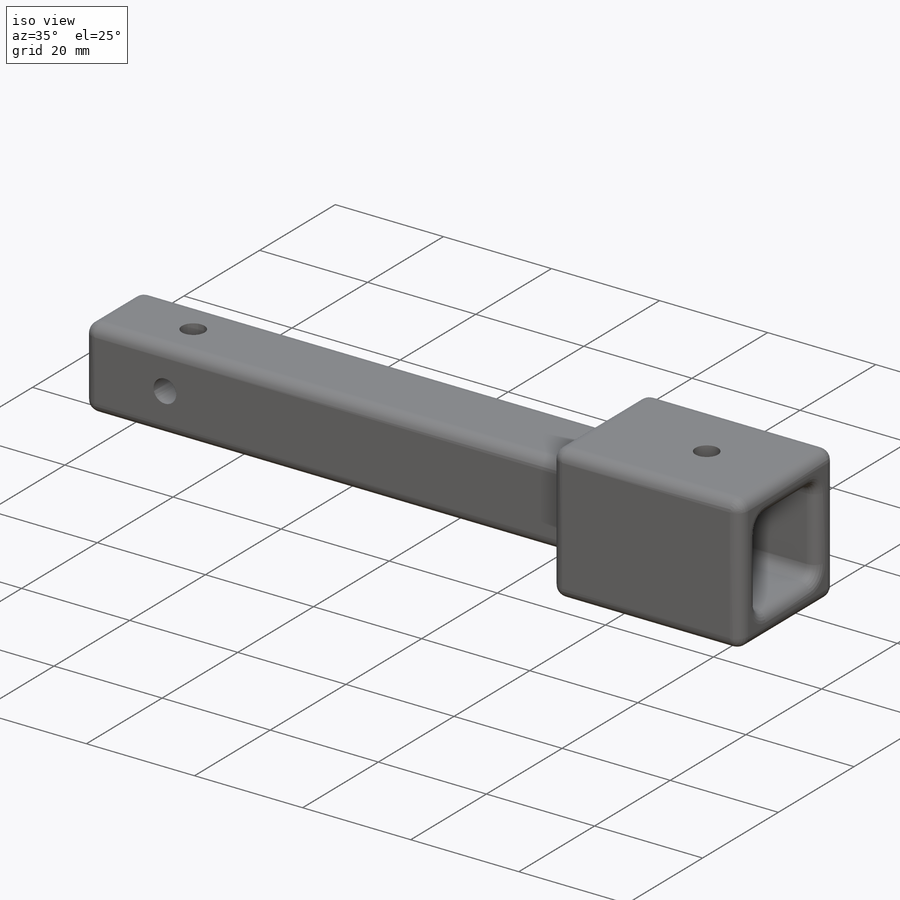
[diagram: iso view]
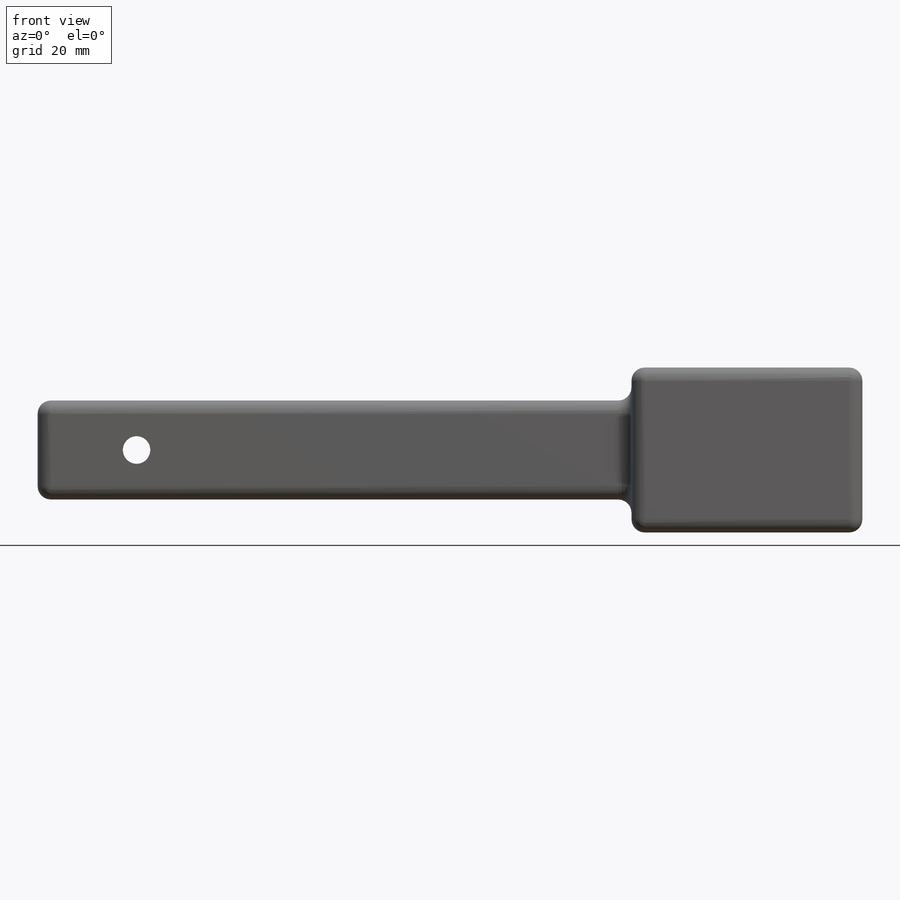
[diagram: front view]
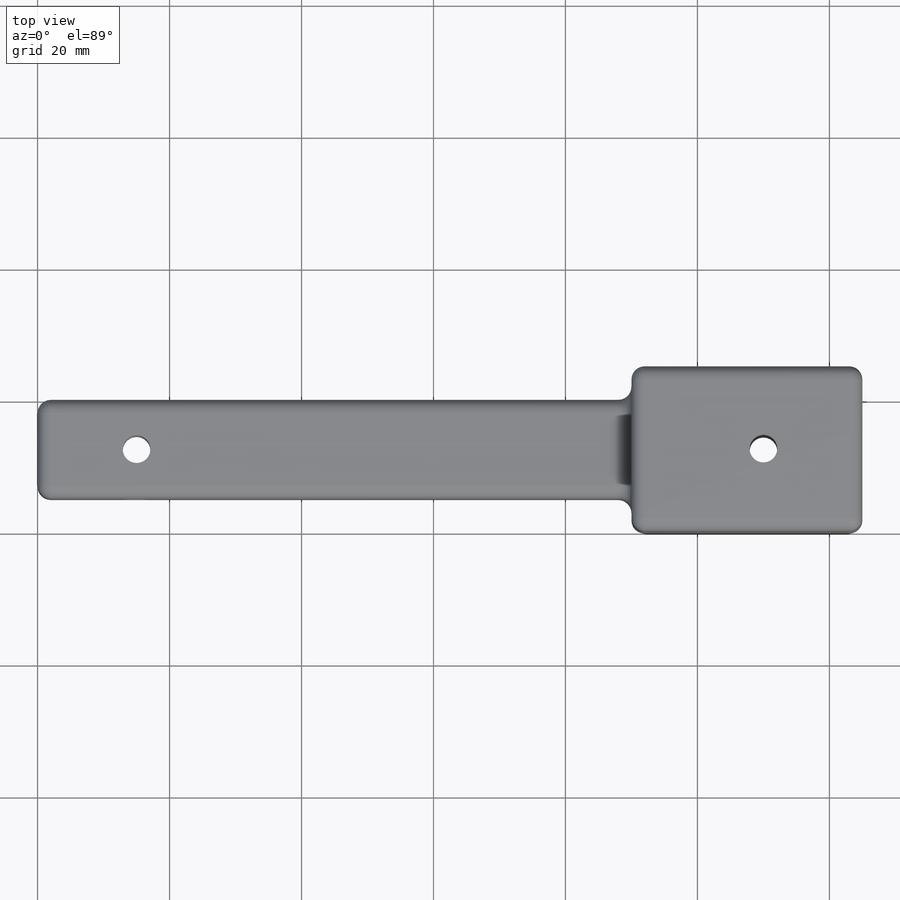
[diagram: top view]
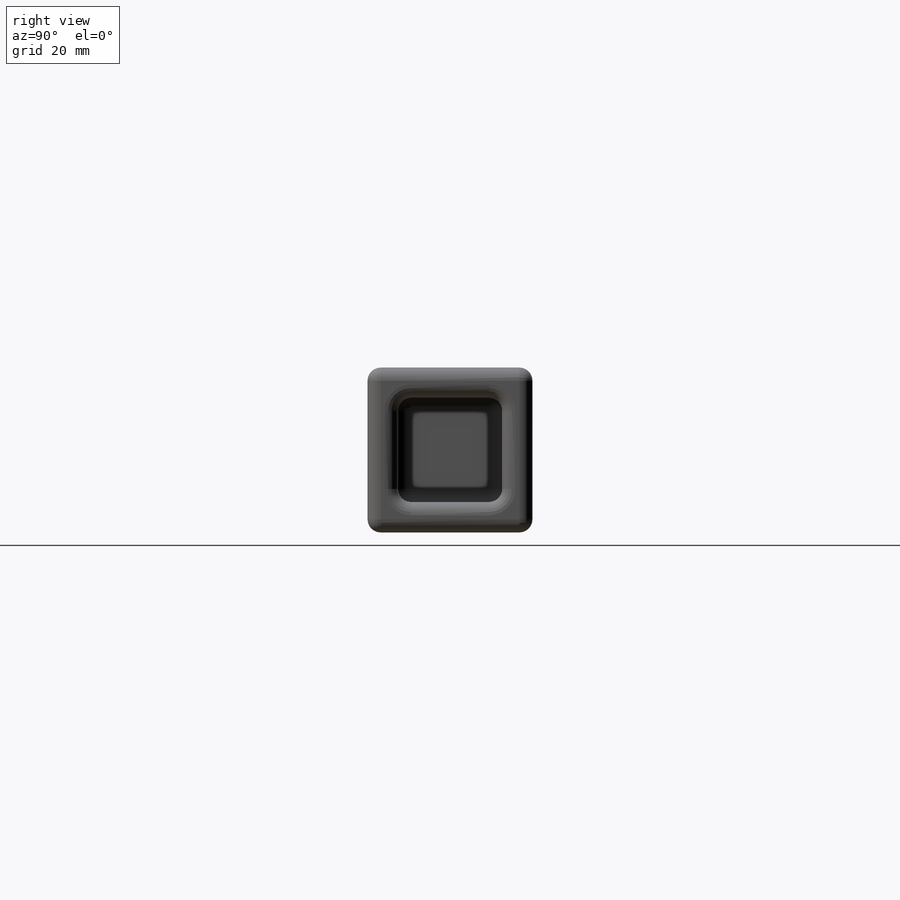
[diagram: right view]
SOLIDWORKS PART (.sldprt)
format: sldprt  version: not decoded by parser v0  size: 340,480 bytes
history: native  units: mm
features: sketch x6, cut_extrude x4, extrude x2, material x1, fillet x1 (+12 scaffold rows collapsed)
feature tree (26):
  scaffold x12  (default folders/planes/origin — collapsed)
  material  "Material <not specified>"
  sketch  "Sketch1"  dims[D1=90.0mm D2=15.0mm D3=35.0mm D4=25.0mm D5=5.0mm]
  extrude  "Boss-Extrude1"  Depth=7.5mm
  extrude  "Boss-Extrude2"  [1 undecoded]
  sketch  "Sketch1<3>"  dims[D1=12.5mm D2=12.5mm]
  sketch  "Sketch3"  dims[c1.D1=~4.452847mm c1.D3=4.2mm c2.D1=15.0mm c2.D2=7.5mm]
  cut_extrude  "Cut-Extrude1"  [1 undecoded]
  sketch  "Sketch5"  dims[c1.D1=~7.961642mm c1.D3=4.2mm c2.D1=12.5mm c2.D2=15.0mm]
  cut_extrude  "Cut-Extrude3"  [1 undecoded]
  sketch  "Sketch6"  dims[c1.D1=15.8mm c1.D2=15.8mm c1.D3=4.6mm c1.D4=~5.899838mm c1.D5=~3.300162mm c2.D4=4.6mm]
  cut_extrude  "Cut-Extrude4"  Depth=32mm
  sketch  "Sketch8"  dims[D1=4.2mm D2=15.0mm D3=7.5mm]
  cut_extrude  "Cut-Extrude5"  [1 undecoded]
  fillet  "Fillet1"  Radius=2mm
decode coverage: 9 of 13 modeling features carry decoded parameters
note: ~ marks probable driven/reference dimensions
note: 4 parameter values undecoded
summary: no parameter record found for 4 features
note: suppression state not decoded; provenance and decode notes live in map.json
